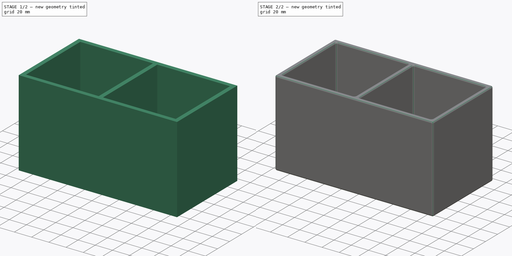
[diagram: build sequence overview — one tinted view per stage of 2, left to right]
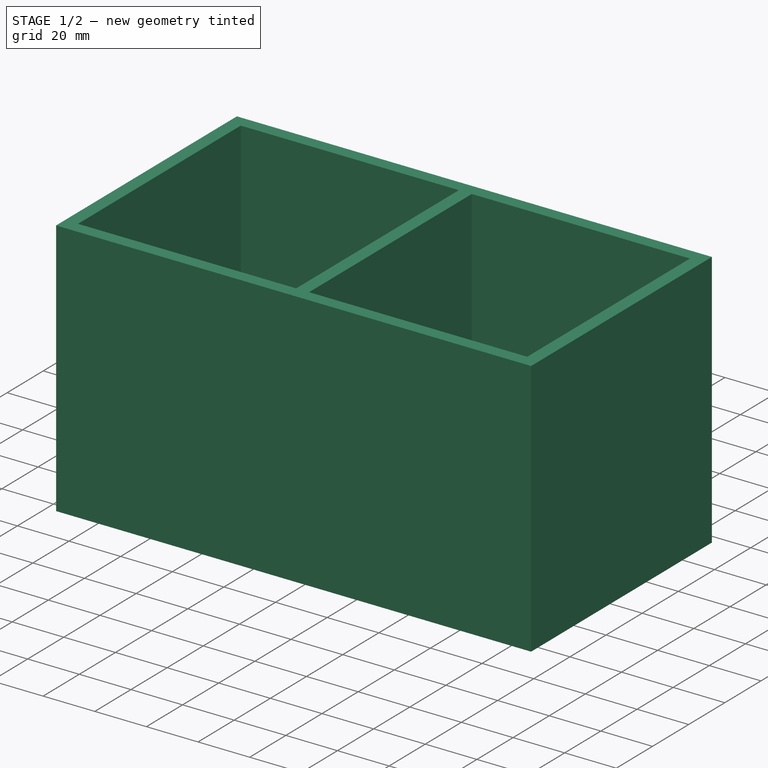
[diagram: stage 1 of 2 — iso view after this stage's code; geometry added in this stage tinted green]
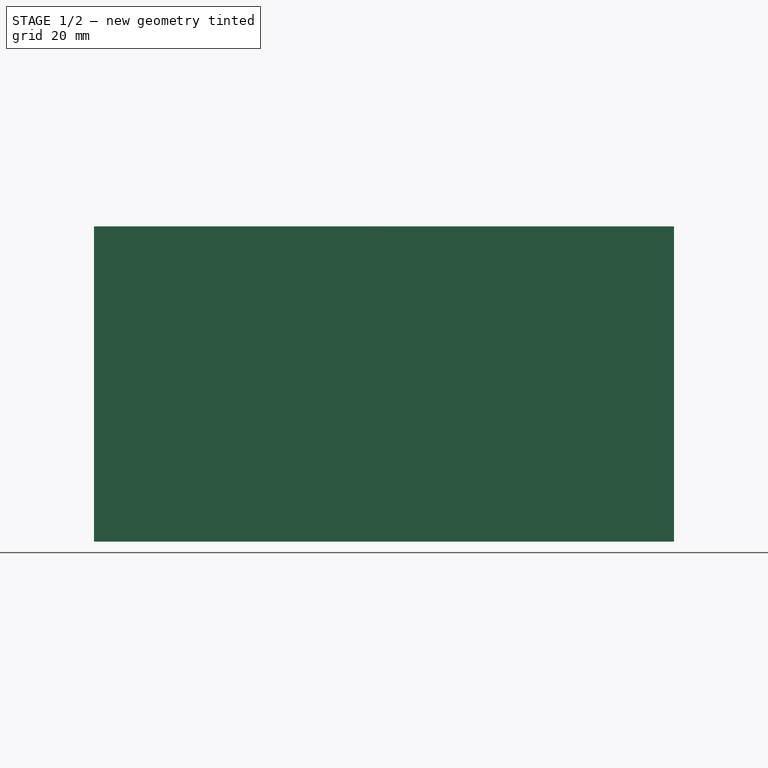
[diagram: stage 1 of 2 — front view after this stage's code; geometry added in this stage tinted green]
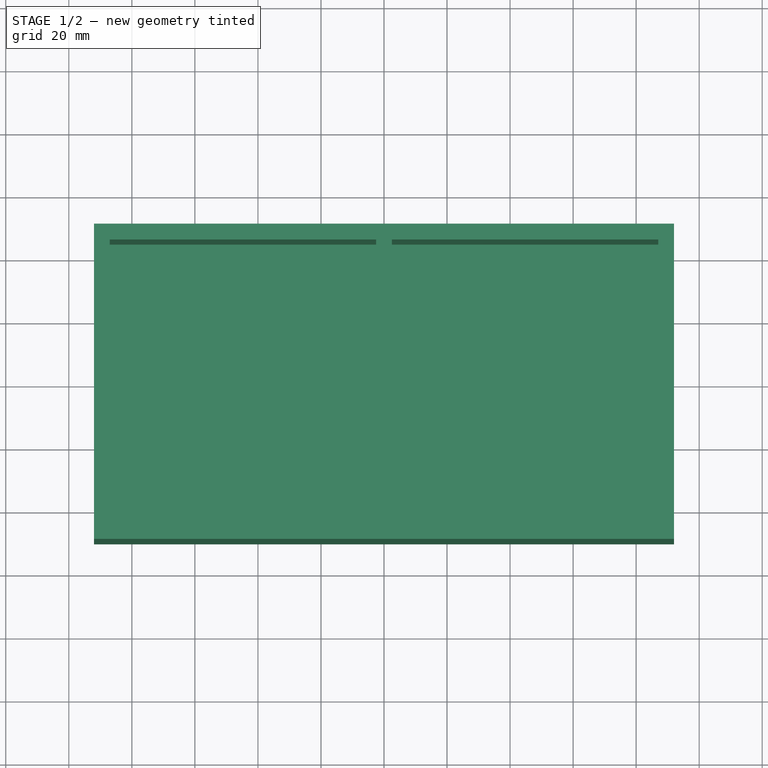
[diagram: stage 1 of 2 — top view after this stage's code; geometry added in this stage tinted green]
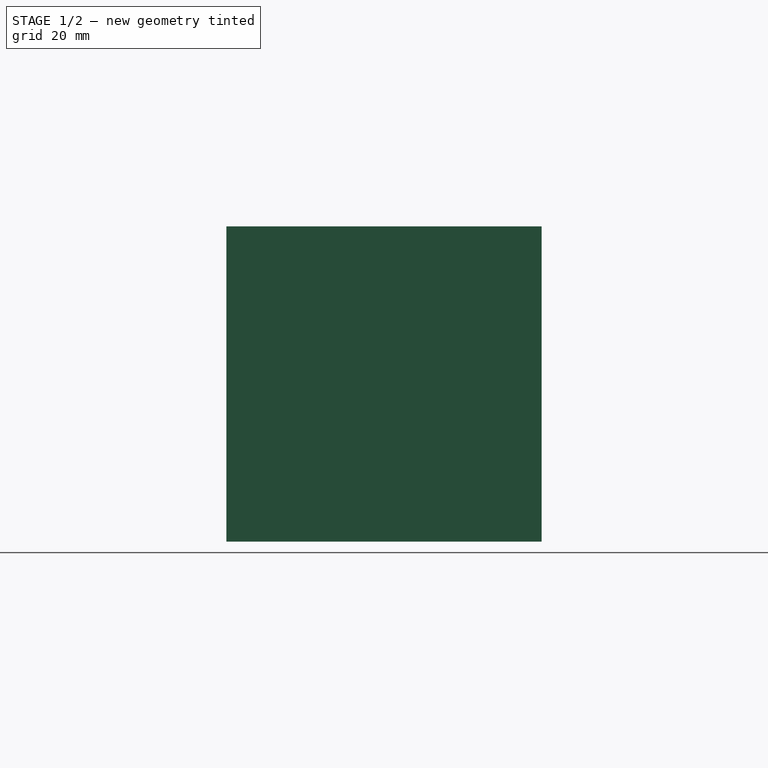
[diagram: stage 1 of 2 — right view after this stage's code; geometry added in this stage tinted green]
FCSTD DOCUMENT  (FreeCAD 1.0R39285 (Git))
Label: DrawerBox
License: All rights reserved
LicenseURL: https://en.wikipedia.org/wiki/All_rights_reserved
objects: Sketcher::SketchObject×2, PartDesign::Pad×1, PartDesign::Pocket×1, PartDesign::Fillet×1, PartDesign::Body×1
note: 14 computed .brp shape members not serialized (recipe doc carries the construction recipe); baked Part::Feature solids carry a one-line shape summary decoded from their .brp

FEATURE [Sketcher::SketchObject] Sketch
  ArcFitTolerance = 1e-06
  AttachmentSupport = -> [XY_Plane]
  FullyConstrained = true
  MakeInternals = false
  MapMode = 5
  sketch-geometry (5):
    g0: LineSegment StartX=-92 StartY=50 StartZ=0 EndX=-92 EndY=-50 EndZ=0
    g1: LineSegment StartX=-92 StartY=-50 StartZ=0 EndX=92 EndY=-50 EndZ=0
    g2: LineSegment StartX=92 StartY=-50 StartZ=0 EndX=92 EndY=50 EndZ=0
    g3: LineSegment StartX=92 StartY=50 StartZ=0 EndX=-92 EndY=50 EndZ=0
    g4: GeomPoint [constr] X=0 Y=0 Z=0
  constraints (12):
    c: Coincident(g0,g1)
    c: Coincident(g1,g2)
    c: Coincident(g2,g3)
    c: Coincident(g3,g0)
    c: Vertical(g0)
    c: Vertical(g2)
    c: Horizontal(g1)
    c: Horizontal(g3)
    c: Symmetric(g2,g0,g4)
    c: Coincident(g4,g-1)
    c: DistanceX(g3,g3) = 184
    c: DistanceY(g2,g2) = 100
FEATURE [PartDesign::Pad] Pad
  Direction = (0,0,1)
  Length = 100
  Length2 = 10
  Profile = -> Sketch
  ReferenceAxis = -> Sketch [N_Axis]
  Refine = true
  Suppressed = false
  Type = 0
FEATURE [Sketcher::SketchObject] Sketch001
  ArcFitTolerance = 1e-06
  AttachmentSupport = -> [Pad]
  ExternalGeometry = -> [Pad]
  FullyConstrained = true
  MakeInternals = false
  MapMode = 5
  Placement = pos=(0,0,100) rot=(0,0,1;0rad)
  sketch-geometry (10):
    g0: LineSegment StartX=-87 StartY=45 StartZ=0 EndX=-87 EndY=-45 EndZ=0
    g1: LineSegment StartX=-87 StartY=-45 StartZ=0 EndX=-2.5 EndY=-45 EndZ=0
    g2: LineSegment StartX=-2.5 StartY=-45 StartZ=0 EndX=-2.5 EndY=45 EndZ=0
    g3: LineSegment StartX=-2.5 StartY=45 StartZ=0 EndX=-87 EndY=45 EndZ=0
    g4: GeomPoint [constr] X=-44.75 Y=0 Z=0
    g5: LineSegment StartX=2.5 StartY=45 StartZ=0 EndX=2.5 EndY=-45 EndZ=0
    g6: LineSegment StartX=2.5 StartY=-45 StartZ=0 EndX=87 EndY=-45 EndZ=0
    g7: LineSegment StartX=87 StartY=-45 StartZ=0 EndX=87 EndY=45 EndZ=0
    g8: LineSegment StartX=87 StartY=45 StartZ=0 EndX=2.5 EndY=45 EndZ=0
    g9: GeomPoint [constr] X=44.75 Y=0 Z=0
  constraints (26):
    c: Coincident(g0,g1)
    c: Coincident(g1,g2)
    c: Coincident(g2,g3)
    c: Coincident(g3,g0)
    c: Vertical(g0)
    c: Vertical(g2)
    c: Horizontal(g1)
    c: Horizontal(g3)
    c: Symmetric(g2,g0,g4)
    c: PointOnObject(g4,g-1)
    c: Coincident(g5,g6)
    c: Coincident(g6,g7)
    c: Coincident(g7,g8)
    c: Coincident(g8,g5)
    c: Vertical(g5)
    c: Vertical(g7)
    c: Horizontal(g6)
    c: Horizontal(g8)
    c: Symmetric(g7,g5,g9)
    c: PointOnObject(g9,g-1)
    c: Distance(g-6,g7) = 5
    c: Distance(g0,g-4) = 5
    c: Distance(g-5,g1) = 5
    c: Distance(g-5,g6) = 5
    c: Distance(g-2,g5) = 2.5
    c: Distance(g2,g-2) = 2.5
FEATURE [PartDesign::Pocket] Pocket
  BaseFeature = -> Pad
  Direction = (0,0,-1)
  Length = 95
  Length2 = 5
  Profile = -> Sketch001
  ReferenceAxis = -> Sketch001 [N_Axis]
  Refine = true
  Suppressed = false
  Type = 0
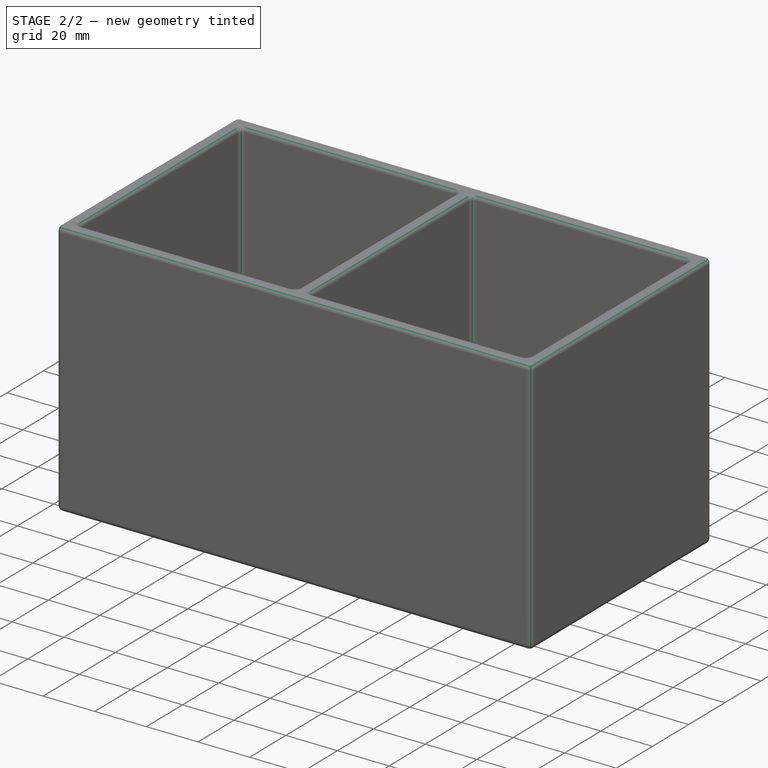
[diagram: stage 2 of 2 — iso view after this stage's code; geometry added in this stage tinted green]
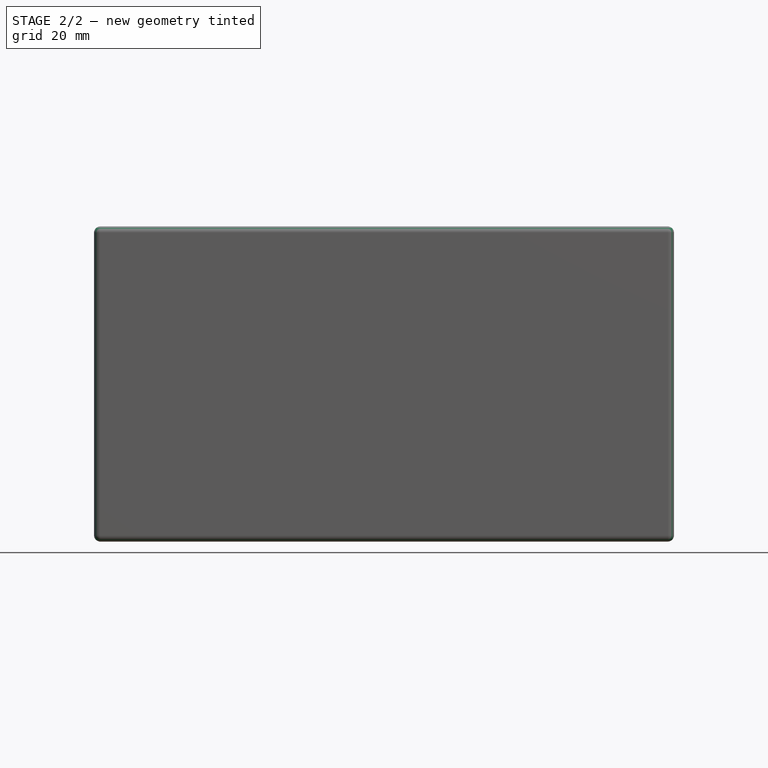
[diagram: stage 2 of 2 — front view after this stage's code; geometry added in this stage tinted green]
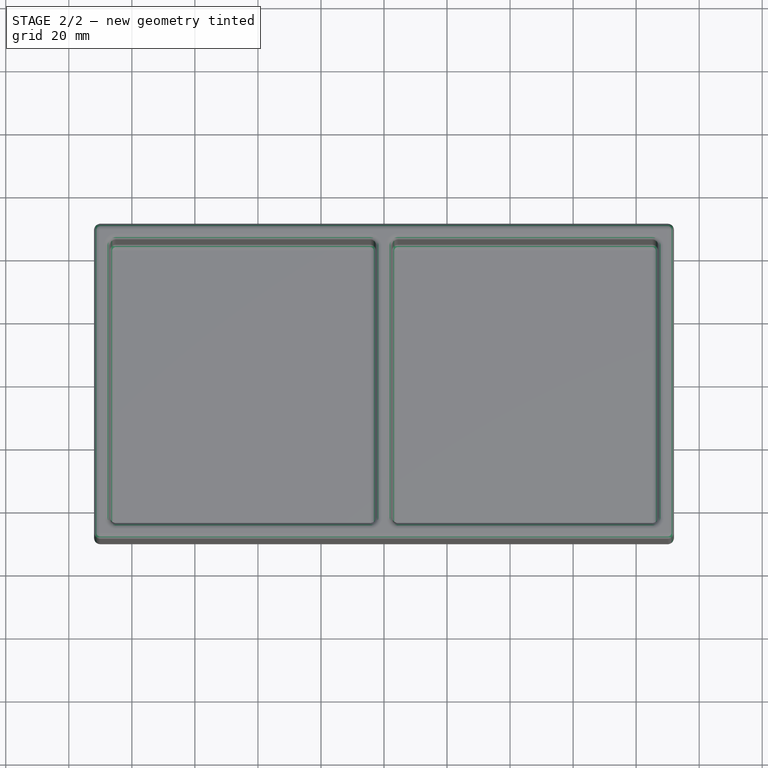
[diagram: stage 2 of 2 — top view after this stage's code; geometry added in this stage tinted green]
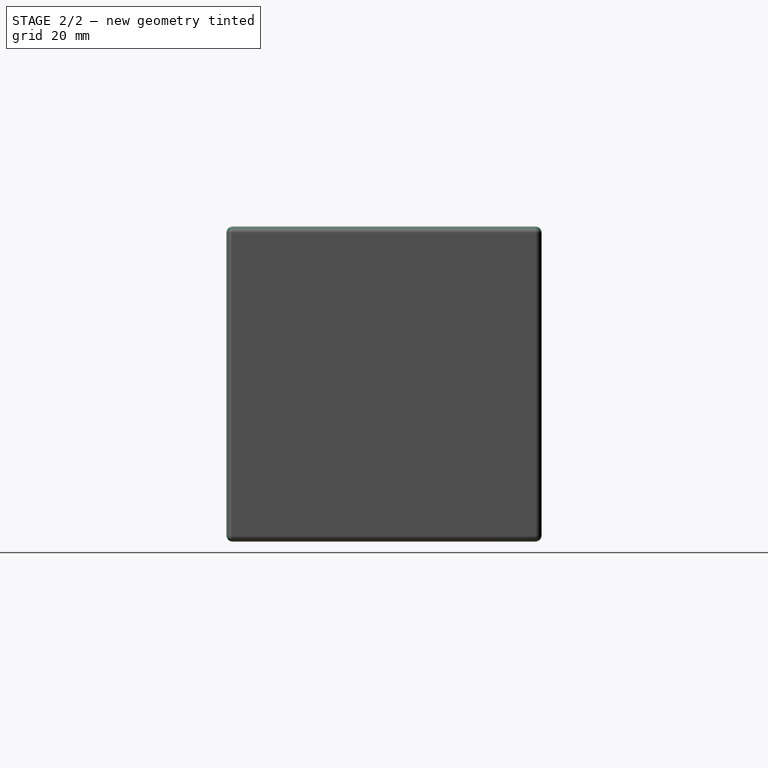
[diagram: stage 2 of 2 — right view after this stage's code; geometry added in this stage tinted green]
FEATURE [PartDesign::Fillet] Fillet
  Base = -> Pocket
  BaseFeature = -> Pocket
  Radius = 2
  Refine = true
  SupportTransform = false
  Suppressed = false
  UseAllEdges = true
FEATURE [PartDesign::Body] Body
  AllowCompound = false
  Group = -> [Sketch,Pad,Sketch001,Pocket,Fillet]
  Origin = -> Origin
  Tip = -> Fillet
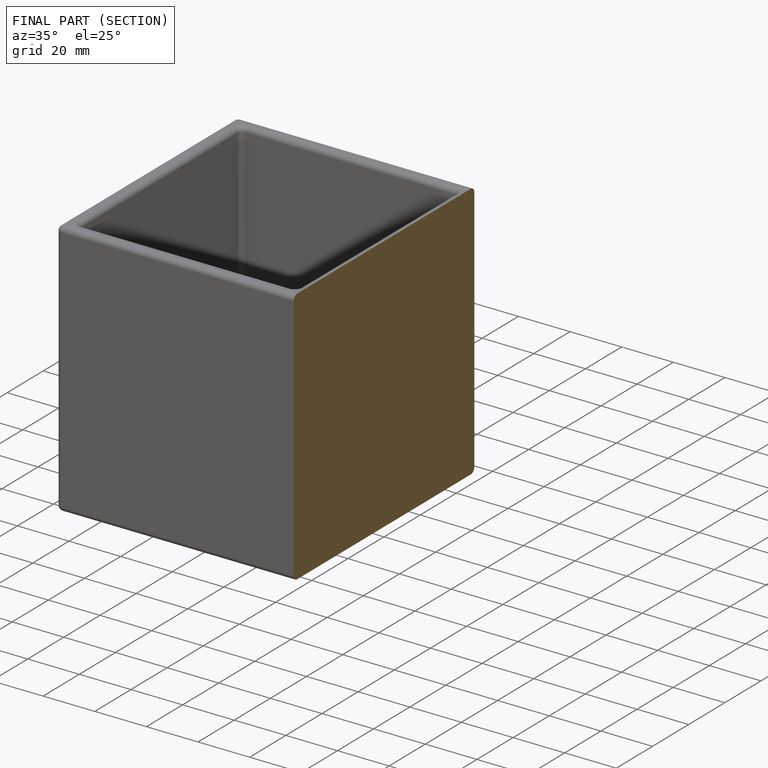
[diagram: finished part — half-section view (interior)]
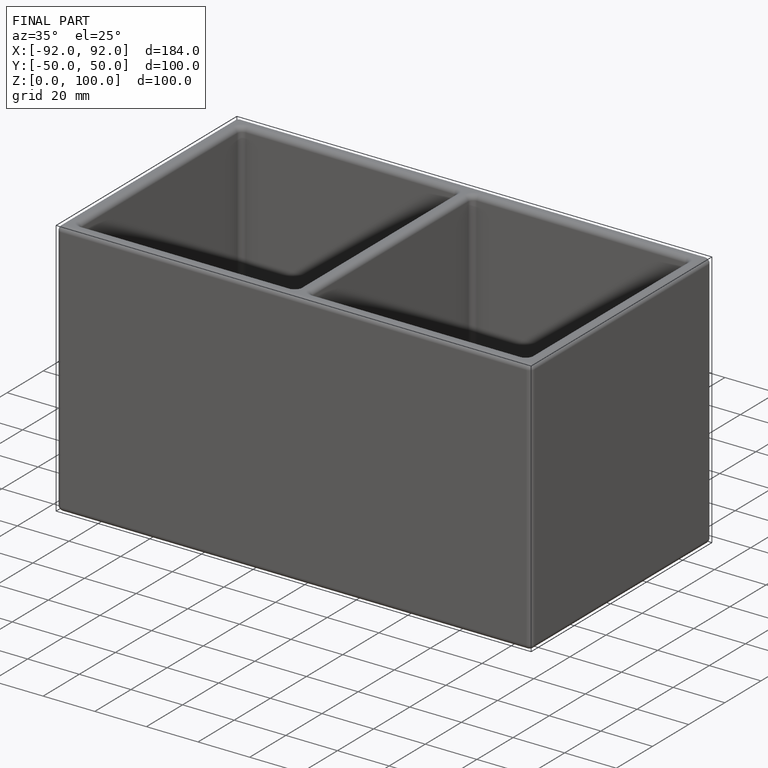
[diagram: finished part — iso view with bounding-box wireframe]
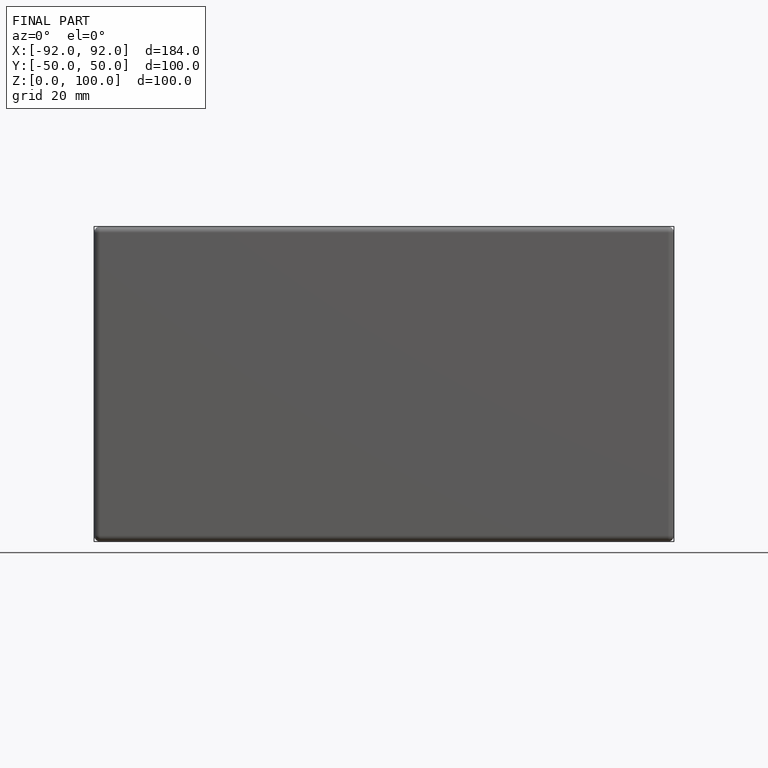
[diagram: finished part — front view with bounding-box wireframe]
